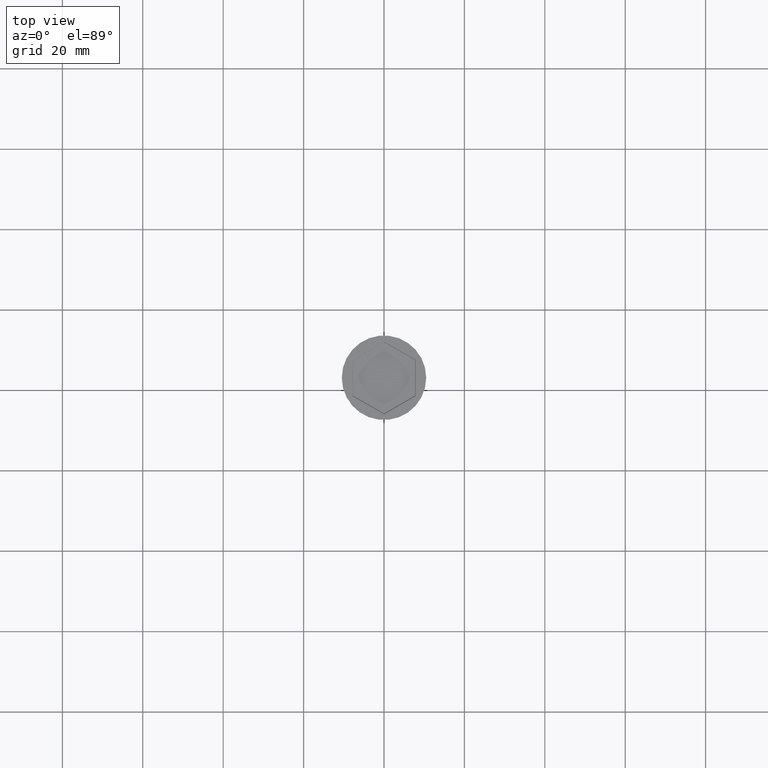
[diagram: clean part render]
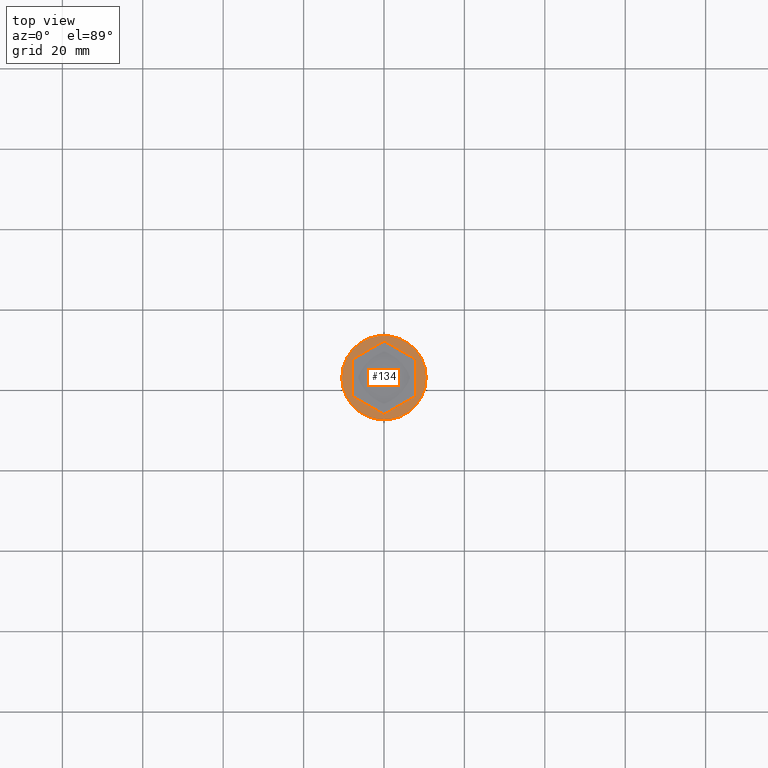
[diagram: same view with one face highlighted and labeled with its STEP entity id]
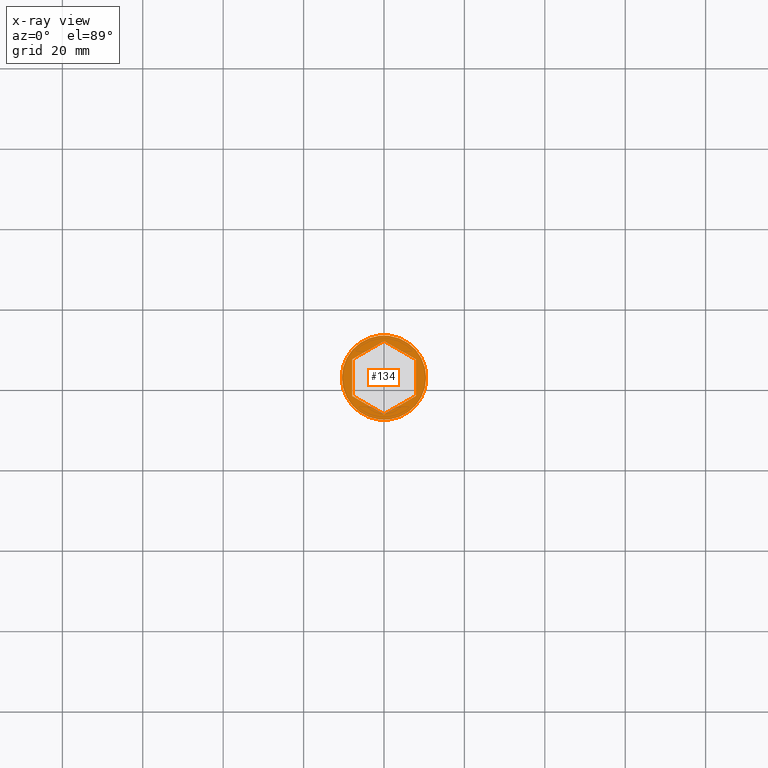
[diagram: x-ray of the same camera — body ghosted, the highlighted face saturated]
A machine part, top view. The second image highlights one B-rep face of the part: STEP entity #134.
The next image is the same camera in x-ray: the body ghosted, the highlighted face saturated — about 0% of this face is hidden behind the body in this view.
In plain terms, the highlighted planar face has unit normal (0, -0, 1).
Its self-contained STEP definition (entity closure, byte-faithful):
#23 = FACE_BOUND ( 'NONE', #1153, .T. ) ;
#33 = PLANE ( 'NONE',  #461 ) ;
#41 = DIRECTION ( 'NONE',  ( -9.755289602189344775E-17, -1.000000000000000000, 0.000000000000000000 ) ) ;
#61 = ORIENTED_EDGE ( 'NONE', *, *, #1131, .T. ) ;
#72 = CIRCLE ( 'NONE', #1492, 10.50000000000000000 ) ;
#105 = VERTEX_POINT ( 'NONE', #692 ) ;
#134 = ADVANCED_FACE ( 'NONE', ( #23, #609 ), #33, .T. ) ;
#135 = DIRECTION ( 'NONE',  ( -0.000000000000000000, -0.000000000000000000, 1.000000000000000000 ) ) ;
#144 = CARTESIAN_POINT ( 'NONE',  ( 7.900000000000023448, 4.561067126598056021, 0.000000000000000000 ) ) ;
#169 = VERTEX_POINT ( 'NONE', #144 ) ;
#178 = VECTOR ( 'NONE', #41, 1000.000000000000000 ) ;
#188 = DIRECTION ( 'NONE',  ( -0.000000000000000000, -0.000000000000000000, 1.000000000000000000 ) ) ;
#214 = ORIENTED_EDGE ( 'NONE', *, *, #220, .T. ) ;
#220 = EDGE_CURVE ( 'NONE', #740, #226, #1336, .T. ) ;
#226 = VERTEX_POINT ( 'NONE', #601 ) ;
#227 = LINE ( 'NONE', #951, #368 ) ;
#235 = CARTESIAN_POINT ( 'NONE',  ( 0.000000000000000000, 0.000000000000000000, 0.000000000000000000 ) ) ;
#243 = DIRECTION ( 'NONE',  ( 1.000000000000000000, 0.000000000000000000, 0.000000000000000000 ) ) ;
#245 = DIRECTION ( 'NONE',  ( 0.8660254037844385966, -0.4999999999999999445, 0.000000000000000000 ) ) ;
#253 = DIRECTION ( 'NONE',  ( 1.000000000000000000, 0.000000000000000000, 0.000000000000000000 ) ) ;
#257 = CARTESIAN_POINT ( 'NONE',  ( 7.900000000000021672, -4.561067126598060462, 0.000000000000000000 ) ) ;
#260 = DIRECTION ( 'NONE',  ( 0.000000000000000000, -0.000000000000000000, 1.000000000000000000 ) ) ;
#276 = LINE ( 'NONE', #1452, #178 ) ;
#277 = CARTESIAN_POINT ( 'NONE',  ( 2.162152112442999528E-16, 9.122134253196112041, 0.000000000000000000 ) ) ;
#345 = VECTOR ( 'NONE', #874, 1000.000000000000000 ) ;
#368 = VECTOR ( 'NONE', #1432, 1000.000000000000000 ) ;
#382 = CARTESIAN_POINT ( 'NONE',  ( 7.800000000000010481, 4.618802153517025388, 0.000000000000000000 ) ) ;
#384 = VERTEX_POINT ( 'NONE', #556 ) ;
#411 = ORIENTED_EDGE ( 'NONE', *, *, #1533, .T. ) ;
#461 = AXIS2_PLACEMENT_3D ( 'NONE', #235, #260, #253 ) ;
#472 = EDGE_CURVE ( 'NONE', #698, #105, #227, .T. ) ;
#530 = CARTESIAN_POINT ( 'NONE',  ( -7.900000000000023448, -4.561067126598055133, 0.000000000000000000 ) ) ;
#556 = CARTESIAN_POINT ( 'NONE',  ( 3.443854359672093147E-15, -9.122134253196112041, 0.000000000000000000 ) ) ;
#595 = VERTEX_POINT ( 'NONE', #257 ) ;
#601 = CARTESIAN_POINT ( 'NONE',  ( 10.50000000000000000, 0.000000000000000000, 0.000000000000000000 ) ) ;
#609 = FACE_OUTER_BOUND ( 'NONE', #1072, .T. ) ;
#612 = DIRECTION ( 'NONE',  ( 0.8660254037844385966, 0.5000000000000002220, 0.000000000000000000 ) ) ;
#633 = ORIENTED_EDGE ( 'NONE', *, *, #944, .T. ) ;
#651 = ORIENTED_EDGE ( 'NONE', *, *, #1512, .T. ) ;
#692 = CARTESIAN_POINT ( 'NONE',  ( -7.900000000000021672, 4.561067126598054244, 0.000000000000000000 ) ) ;
#698 = VERTEX_POINT ( 'NONE', #530 ) ;
#707 = CARTESIAN_POINT ( 'NONE',  ( 0.000000000000000000, 0.000000000000000000, 0.000000000000000000 ) ) ;
#721 = VERTEX_POINT ( 'NONE', #277 ) ;
#736 = EDGE_CURVE ( 'NONE', #595, #384, #872, .T. ) ;
#740 = VERTEX_POINT ( 'NONE', #1113 ) ;
#752 = ORIENTED_EDGE ( 'NONE', *, *, #1318, .T. ) ;
#793 = DIRECTION ( 'NONE',  ( 1.000000000000000000, 0.000000000000000000, 0.000000000000000000 ) ) ;
#802 = ORIENTED_EDGE ( 'NONE', *, *, #472, .T. ) ;
#863 = DIRECTION ( 'NONE',  ( -0.8660254037844388186, -0.4999999999999997780, 0.000000000000000000 ) ) ;
#872 = LINE ( 'NONE', #1109, #1442 ) ;
#874 = DIRECTION ( 'NONE',  ( -0.8660254037844387076, 0.4999999999999998890, 0.000000000000000000 ) ) ;
#921 = LINE ( 'NONE', #1456, #1167 ) ;
#944 = EDGE_CURVE ( 'NONE', #169, #595, #276, .T. ) ;
#951 = CARTESIAN_POINT ( 'NONE',  ( -7.900000000000021672, 4.445597072760116397, 0.000000000000000000 ) ) ;
#978 = LINE ( 'NONE', #382, #1497 ) ;
#1013 = ORIENTED_EDGE ( 'NONE', *, *, #736, .T. ) ;
#1072 = EDGE_LOOP ( 'NONE', ( #61, #214 ) ) ;
#1109 = CARTESIAN_POINT ( 'NONE',  ( 0.1000000000000110523, -9.064399226277146226, 0.000000000000000000 ) ) ;
#1113 = CARTESIAN_POINT ( 'NONE',  ( -10.50000000000000000, 1.285879139104720831E-15, 0.000000000000000000 ) ) ;
#1116 = AXIS2_PLACEMENT_3D ( 'NONE', #707, #135, #243 ) ;
#1131 = EDGE_CURVE ( 'NONE', #226, #740, #72, .T. ) ;
#1138 = LINE ( 'NONE', #1248, #345 ) ;
#1153 = EDGE_LOOP ( 'NONE', ( #752, #802, #651, #411, #633, #1013 ) ) ;
#1167 = VECTOR ( 'NONE', #612, 999.9999999999998863 ) ;
#1248 = CARTESIAN_POINT ( 'NONE',  ( -7.800000000000010481, -4.618802153517024500, 0.000000000000000000 ) ) ;
#1250 = CARTESIAN_POINT ( 'NONE',  ( 0.000000000000000000, 0.000000000000000000, 0.000000000000000000 ) ) ;
#1318 = EDGE_CURVE ( 'NONE', #384, #698, #1138, .T. ) ;
#1336 = CIRCLE ( 'NONE', #1116, 10.50000000000000000 ) ;
#1432 = DIRECTION ( 'NONE',  ( 9.755289602189348473E-17, 1.000000000000000000, 0.000000000000000000 ) ) ;
#1442 = VECTOR ( 'NONE', #863, 1000.000000000000114 ) ;
#1452 = CARTESIAN_POINT ( 'NONE',  ( 7.900000000000021672, -4.445597072760119950, 0.000000000000000000 ) ) ;
#1456 = CARTESIAN_POINT ( 'NONE',  ( -0.1000000000000104278, 9.064399226277144450, 0.000000000000000000 ) ) ;
#1492 = AXIS2_PLACEMENT_3D ( 'NONE', #1250, #188, #793 ) ;
#1497 = VECTOR ( 'NONE', #245, 1000.000000000000114 ) ;
#1512 = EDGE_CURVE ( 'NONE', #105, #721, #921, .T. ) ;
#1533 = EDGE_CURVE ( 'NONE', #721, #169, #978, .T. ) ;